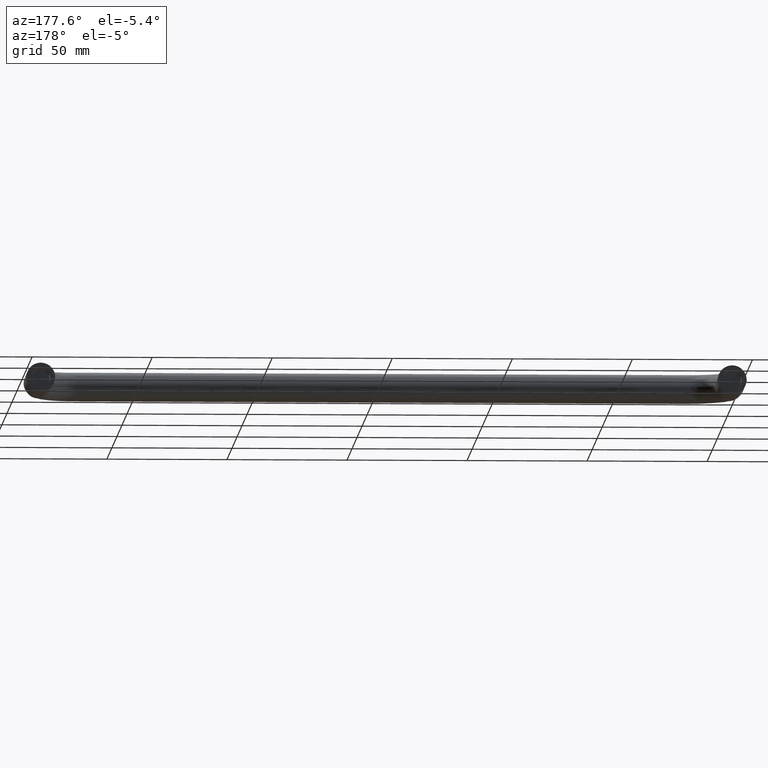
[diagram: clean part render]
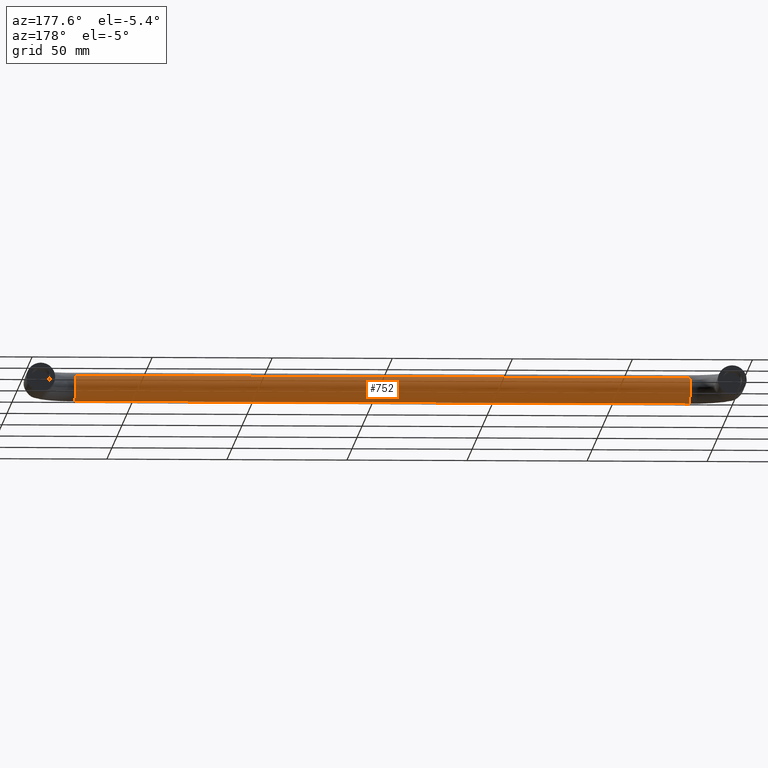
[diagram: same view with one face highlighted and labeled with its STEP entity id]
A machine part, auxiliary view. The second image highlights one B-rep face of the part: STEP entity #752.
In plain terms, the highlighted face is a freeform B-spline surface patch.
Its self-contained STEP definition (entity closure, byte-faithful):
#620=CARTESIAN_POINT('',(9.599999997004861,-48.467994806516181,-4.004625127142923));
#621=CARTESIAN_POINT('',(9.599999997004861,-48.236023575800246,-4.263437430715380));
#622=CARTESIAN_POINT('',(9.599999997004861,-47.975720289294422,-4.493734324734011));
#623=CARTESIAN_POINT('',(9.599999997004861,-43.481985964560408,-8.469454614028436));
#624=CARTESIAN_POINT('',(9.599999997004861,-39.506265675265993,-3.975720289294424));
#625=CARTESIAN_POINT('',(9.599999997004861,-35.530545385971564,0.518014035439587));
#626=CARTESIAN_POINT('',(9.599999997004861,-40.024279710705578,4.493734324734011));
#627=CARTESIAN_POINT('',(278.560000003448520,-48.467994806516131,-4.004625127142923));
#628=CARTESIAN_POINT('',(278.560000003448520,-48.236023575800189,-4.263437430715380));
#629=CARTESIAN_POINT('',(278.560000003448520,-47.975720289294387,-4.493734324734011));
#630=CARTESIAN_POINT('',(278.560000003448580,-43.481985964560380,-8.469454614028436));
#631=CARTESIAN_POINT('',(278.560000003448520,-39.506265675265951,-3.975720289294424));
#632=CARTESIAN_POINT('',(278.560000003448580,-35.530545385971536,0.518014035439587));
#633=CARTESIAN_POINT('',(278.560000003448520,-40.024279710705542,4.493734324734011));
#641=(BOUNDED_SURFACE()B_SPLINE_SURFACE(2,1,((#620,#627),(#621,#628),(#622,#629),(#623,#630),(#624,#631),(#625,#632),(#626,#633)),.UNSPECIFIED.,.F.,.F.,.U.)B_SPLINE_SURFACE_WITH_KNOTS((3,2,2,3),(2,2),(0.0,0.795290039756345,10.736415536710640,20.677541033664941),(0.0,268.960000006443690),.UNSPECIFIED.)GEOMETRIC_REPRESENTATION_ITEM()RATIONAL_B_SPLINE_SURFACE(((0.956886118190660,0.956886118190660),(0.976568542494924,0.976568542494924),(1.0,1.0),(0.707106781186548,0.707106781186548),(1.0,1.0),(0.707106781186548,0.707106781186548),(1.0,1.0)))REPRESENTATION_ITEM('')SURFACE());
#642=CARTESIAN_POINT('',(271.999999999770130,-43.924603759905253,-5.999526265212910));
#643=VERTEX_POINT('',#642);
#644=CARTESIAN_POINT('',(272.0,-48.467994806515520,-4.004625127143624));
#645=VERTEX_POINT('',#644);
#646=CARTESIAN_POINT('',(271.999999999770180,-43.924603759905246,-5.999526265212910));
#647=CARTESIAN_POINT('',(272.000000000000060,-43.962300391253926,-6.0));
#648=CARTESIAN_POINT('',(272.0,-44.0,-6.0));
#649=CARTESIAN_POINT('',(272.000000000000060,-46.679557554470939,-5.999999999999999));
#650=CARTESIAN_POINT('',(272.0,-48.467994806515520,-4.004625127143624));
#658=(BOUNDED_CURVE()B_SPLINE_CURVE(2,(#646,#647,#648,#649,#650),.UNSPECIFIED.,.F.,.U.)B_SPLINE_CURVE_WITH_KNOTS((3,2,3),(0.247784295875141,0.250000000000000,0.383245959685824),.UNSPECIFIED.)CURVE()GEOMETRIC_REPRESENTATION_ITEM()RATIONAL_B_SPLINE_CURVE((0.994854295536787,0.997404141147727,1.0,0.843892647894926,0.854190687351879))REPRESENTATION_ITEM(''));
#659=EDGE_CURVE('',#643,#645,#658,.T.);
#660=ORIENTED_EDGE('',*,*,#659,.T.);
#661=CARTESIAN_POINT('',(15.999999999999989,-48.467994806515549,-4.004625127143617));
#662=VERTEX_POINT('',#661);
#663=CARTESIAN_POINT('',(15.999999999999989,-48.467994806515549,-4.004625127143617));
#664=CARTESIAN_POINT('',(272.0,-48.467994806515520,-4.004625127143624));
#665=QUASI_UNIFORM_CURVE('',1,(#663,#664),.UNSPECIFIED.,.F.,.U.);
#666=EDGE_CURVE('',#662,#645,#665,.T.);
#667=ORIENTED_EDGE('',*,*,#666,.F.);
#668=CARTESIAN_POINT('',(15.999999997158200,-43.581600486216288,-5.985394042739838));
#669=VERTEX_POINT('',#668);
#670=CARTESIAN_POINT('',(15.999999997158199,-43.581600486216288,-5.985394042739839));
#671=CARTESIAN_POINT('',(16.000000000000004,-43.790545300404808,-6.0));
#672=CARTESIAN_POINT('',(16.0,-44.0,-6.0));
#673=CARTESIAN_POINT('',(16.000000000000004,-46.679557554470968,-5.999999999999999));
#674=CARTESIAN_POINT('',(15.999999999999986,-48.467994806515549,-4.004625127143617));
#682=(BOUNDED_CURVE()B_SPLINE_CURVE(2,(#670,#671,#672,#673,#674),.UNSPECIFIED.,.F.,.U.)B_SPLINE_CURVE_WITH_KNOTS((3,2,3),(0.237833686286240,0.250000000000000,0.383245959685825),.UNSPECIFIED.)CURVE()GEOMETRIC_REPRESENTATION_ITEM()RATIONAL_B_SPLINE_CURVE((0.972879875860633,0.985746276861130,1.0,0.843892647894924,0.854190687351880))REPRESENTATION_ITEM(''));
#683=EDGE_CURVE('',#669,#662,#682,.T.);
#684=ORIENTED_EDGE('',*,*,#683,.F.);
#685=CARTESIAN_POINT('',(16.0,-38.0,0.0));
#686=VERTEX_POINT('',#685);
#687=CARTESIAN_POINT('',(16.0,-38.0,0.0));
#688=CARTESIAN_POINT('',(15.999999999999995,-38.000000000000014,-5.595221075482508));
#689=CARTESIAN_POINT('',(15.999999997158195,-43.581600486216288,-5.985394042739838));
#697=(BOUNDED_CURVE()B_SPLINE_CURVE(2,(#687,#688,#689),.UNSPECIFIED.,.F.,.U.)B_SPLINE_CURVE_WITH_KNOTS((3,3),(0.0,0.237833686286240),.UNSPECIFIED.)CURVE()GEOMETRIC_REPRESENTATION_ITEM()RATIONAL_B_SPLINE_CURVE((1.0,0.721360504325417,0.972879875860633))REPRESENTATION_ITEM(''));
#698=EDGE_CURVE('',#686,#669,#697,.T.);
#699=ORIENTED_EDGE('',*,*,#698,.F.);
#700=CARTESIAN_POINT('',(16.0,-40.024279710704569,4.493734324733120));
#701=VERTEX_POINT('',#700);
#702=CARTESIAN_POINT('',(16.000000000000004,-40.024279710704569,4.493734324733120));
#703=CARTESIAN_POINT('',(15.999999999999996,-38.0,2.702802922143174));
#704=CARTESIAN_POINT('',(16.0,-38.0,0.0));
#712=(BOUNDED_CURVE()B_SPLINE_CURVE(2,(#702,#703,#704),.UNSPECIFIED.,.F.,.U.)B_SPLINE_CURVE_WITH_KNOTS((3,3),(0.865779888059639,1.0),.UNSPECIFIED.)CURVE()GEOMETRIC_REPRESENTATION_ITEM()RATIONAL_B_SPLINE_CURVE((0.854350158224962,0.842751357537143,1.0))REPRESENTATION_ITEM(''));
#713=EDGE_CURVE('',#701,#686,#712,.T.);
#714=ORIENTED_EDGE('',*,*,#713,.F.);
#715=CARTESIAN_POINT('',(272.0,-40.024279710704540,4.493734324733110));
#716=VERTEX_POINT('',#715);
#717=CARTESIAN_POINT('',(16.0,-40.024279710704569,4.493734324733120));
#718=CARTESIAN_POINT('',(272.0,-40.024279710704540,4.493734324733110));
#719=QUASI_UNIFORM_CURVE('',1,(#717,#718),.UNSPECIFIED.,.F.,.U.);
#720=EDGE_CURVE('',#701,#716,#719,.T.);
#721=ORIENTED_EDGE('',*,*,#720,.T.);
#722=CARTESIAN_POINT('',(272.0,-38.0,0.0));
#723=VERTEX_POINT('',#722);
#724=CARTESIAN_POINT('',(272.000000000000060,-40.024279710704540,4.493734324733111));
#725=CARTESIAN_POINT('',(272.0,-37.999999999999993,2.702802922143156));
#726=CARTESIAN_POINT('',(272.0,-38.0,0.0));
#734=(BOUNDED_CURVE()B_SPLINE_CURVE(2,(#724,#725,#726),.UNSPECIFIED.,.F.,.U.)B_SPLINE_CURVE_WITH_KNOTS((3,3),(0.865779888059640,1.0),.UNSPECIFIED.)CURVE()GEOMETRIC_REPRESENTATION_ITEM()RATIONAL_B_SPLINE_CURVE((0.854350158224962,0.842751357537144,1.0))REPRESENTATION_ITEM(''));
#735=EDGE_CURVE('',#716,#723,#734,.T.);
#736=ORIENTED_EDGE('',*,*,#735,.T.);
#737=CARTESIAN_POINT('',(272.0,-38.0,0.0));
#738=CARTESIAN_POINT('',(272.000000000000110,-38.000000000000007,-5.925071577874211));
#739=CARTESIAN_POINT('',(271.999999999770130,-43.924603759905239,-5.999526265212910));
#747=(BOUNDED_CURVE()B_SPLINE_CURVE(2,(#737,#738,#739),.UNSPECIFIED.,.F.,.U.)B_SPLINE_CURVE_WITH_KNOTS((3,3),(0.0,0.247784295875141),.UNSPECIFIED.)CURVE()GEOMETRIC_REPRESENTATION_ITEM()RATIONAL_B_SPLINE_CURVE((1.0,0.709702640038820,0.994854295536787))REPRESENTATION_ITEM(''));
#748=EDGE_CURVE('',#723,#643,#747,.T.);
#749=ORIENTED_EDGE('',*,*,#748,.T.);
#750=EDGE_LOOP('',(#660,#667,#684,#699,#714,#721,#736,#749));
#751=FACE_OUTER_BOUND('',#750,.T.);
#752=ADVANCED_FACE('',(#751),#641,.T.);